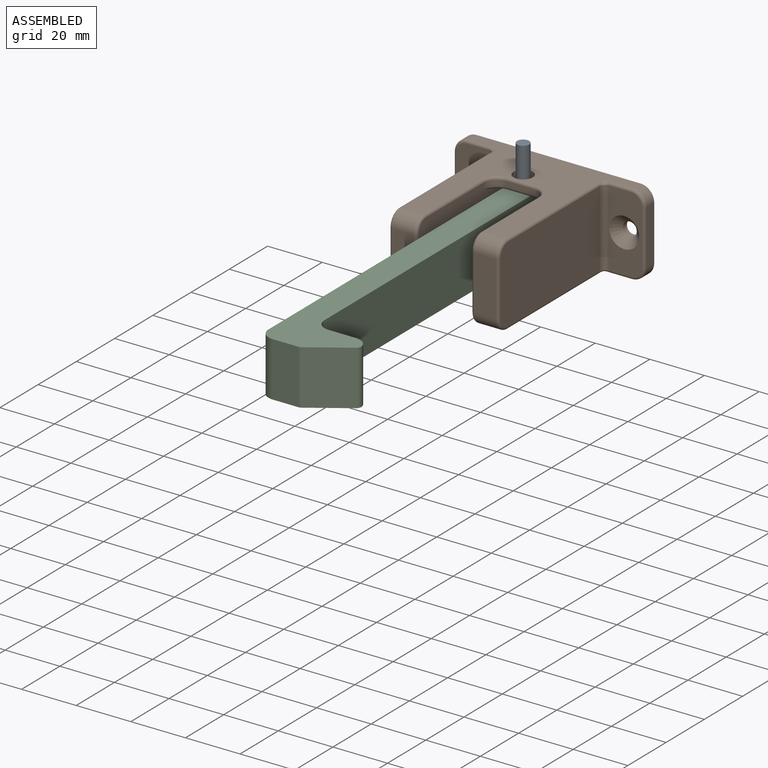
[diagram: assembled view]
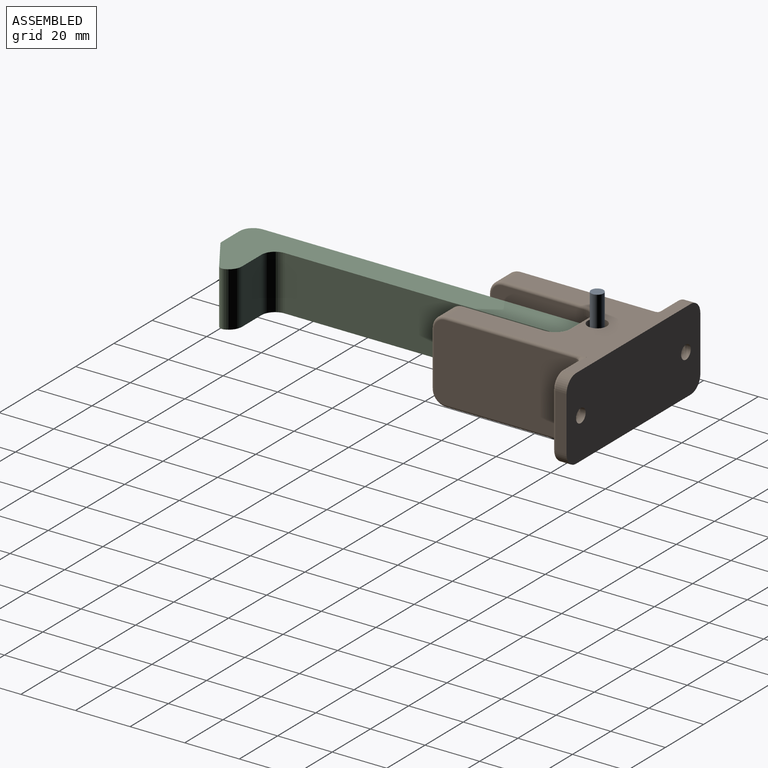
[diagram: assembled view, second angle]
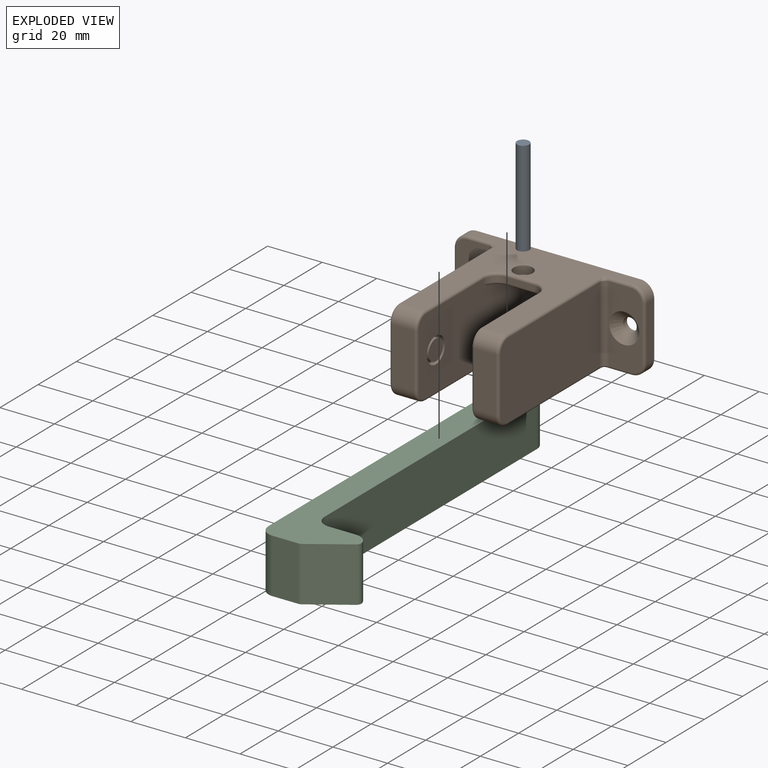
[diagram: exploded view]
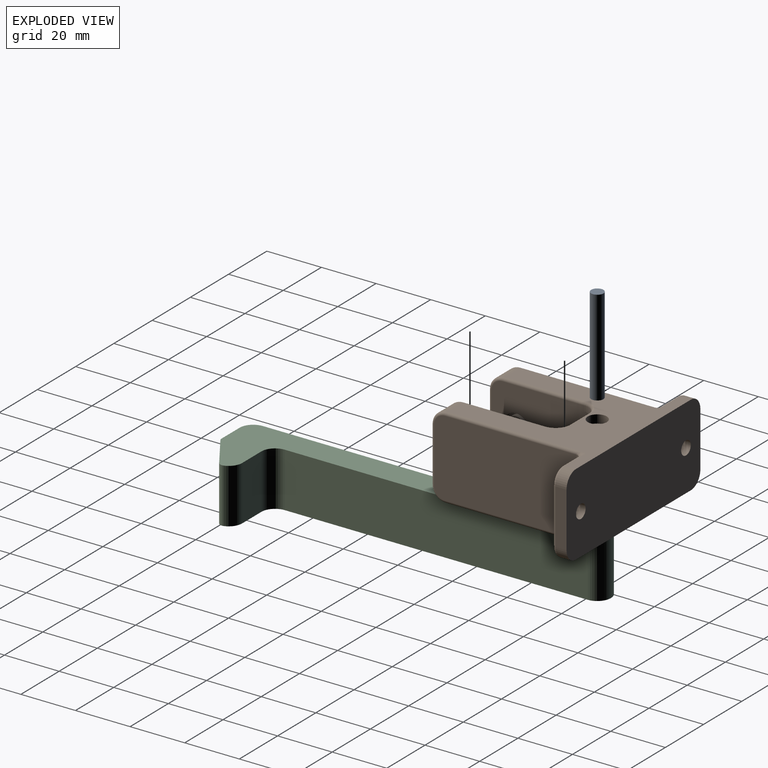
[diagram: exploded view, second angle]
ASSEMBLY  parts=3 mates=2
PART A: 3 faces, bbox 4.5x4.5x35 mm
  f0: cylinder r=2.25mm len=35mm, axis (0,0,-1), area 494.8mm2, adj f1,f2
  f1: plane 4.5x4.5mm, normal (0,0,1), area 15.9mm2, adj f0
  f2: plane 4.5x4.5mm, normal (0,0,-1), area 15.9mm2, adj f0
PART B: 97 faces, bbox 70.8x60.4x30.8 mm
  f0: cylinder r=2.25mm len=4.5mm, axis (0,0,1), area 14.1mm2, adj f23,f48
  f1: cylinder r=2.25mm len=4.5mm, axis (0,0,1), area 28.3mm2, adj f24,f46
  f2: cylinder r=5mm len=5mm, axis (0,0,-1), area 15.7mm2, adj f3,f8,f54,f85
  f3: plane 10x2mm, normal (0,-1,0), area 20mm2, adj f2,f4,f56,f86
  f4: cylinder r=5mm len=5mm, axis (0,0,-1), area 15.7mm2, adj f3,f12,f58,f87
  f5: plane 28x12mm, normal (0,-1,0), area 234.1mm2, adj f39,f66,f68,f70,f72,f74,f95
  f6: plane 52x28mm, normal (-1,0,0), area 1449.1mm2, adj f65,f67,f69,f71,f73,f95
  f7: plane 20x8mm, normal (0,-1,0), area 160mm2, adj f21,f22,f49,f69
  f8: plane 54x28mm, normal (1,0,0), area 1296.8mm2, adj f2,f9,f23,f24,f25,f27,f49,f50
  f9: cylinder r=5mm len=5mm, axis (0,0,-1), area 23.6mm2, adj f8,f10,f55,f88
  f10: plane 10x3mm, normal (0,-1,0), area 30mm2, adj f9,f11,f57,f89
  f11: cylinder r=5mm len=5mm, axis (0,0,-1), area 23.6mm2, adj f10,f12,f59,f90
  f12: plane 54x28mm, normal (-1,0,0), area 1367.6mm2, adj f4,f11,f23,f24,f25,f60,f61,f62
  f13: plane 20x8mm, normal (0,-1,0), area 160mm2, adj f30,f31,f64,f78
  f14: plane 52x28mm, normal (1,0,0), area 1449.1mm2, adj f75,f76,f78,f80,f82,f92
  f15: plane 28x12mm, normal (0,-1,0), area 234.1mm2, adj f38,f77,f79,f81,f83,f84,f92
  f16: plane 20x4mm, normal (1,0,0), area 80mm2, adj f17,f32,f34,f81
  f17: plane 70x30mm, normal (0,1,0), area 2039.3mm2, adj f16,f18,f19,f20,f32,f33,f34,f35
  f18: plane 20x4mm, normal (-1,0,0), area 80mm2, adj f17,f33,f35,f70
  f19: plane 60x55mm, normal (0,0,1), area 1363mm2, adj f17,f22,f31,f34,f35,f47,f52,f54
  f20: plane 60x55mm, normal (0,0,-1), area 1359mm2, adj f17,f21,f30,f32,f33,f40,f41,f42
  f21: cylinder r=5mm len=8mm, axis (1,0,0), area 62.8mm2, adj f7,f20,f51,f67
  f22: cylinder r=5mm len=8mm, axis (-1,0,0), area 62.8mm2, adj f7,f19,f50,f71
  f23: plane 20x16.68mm, normal (0,0,-1), area 272mm2, adj f0,f8,f12,f25,f85,f86,f87
  f24: plane 20x16.68mm, normal (0,0,1), area 272mm2, adj f1,f8,f12,f25,f88,f89,f90
  f25: plane 21x20mm, normal (0,-1,0), area 420mm2, adj f8,f12,f23,f24
  f26: cylinder r=3.75mm len=7.5mm, axis (1,0,0), area 47.1mm2, adj f28,f29
  f27: cylinder r=4.75mm len=9.5mm, axis (1,0,0), area 59.7mm2, adj f8,f28
  f28: plane 9.5x9.5mm, normal (1,0,0), area 26.7mm2, adj f26,f27
  f29: plane 7.5x7.5mm, normal (1,0,0), area 44.2mm2, adj f26
  f30: cylinder r=5mm len=8mm, axis (1,0,0), area 62.8mm2, adj f13,f20,f63,f76
  f31: cylinder r=5mm len=8mm, axis (-1,0,0), area 62.8mm2, adj f13,f19,f62,f80
  f32: cylinder r=5mm len=5mm, axis (0,1,0), area 31.4mm2, adj f16,f17,f20,f79
  f33: cylinder r=5mm len=5mm, axis (0,-1,0), area 31.4mm2, adj f17,f18,f20,f68
  f34: cylinder r=5mm len=5mm, axis (0,-1,0), area 31.4mm2, adj f16,f17,f19,f83
  f35: cylinder r=5mm len=5mm, axis (0,1,0), area 31.4mm2, adj f17,f18,f19,f72
  f36: cylinder r=2.5mm len=5mm, axis (0,1,0), area 31.4mm2, adj f17,f38
  f37: cylinder r=2.5mm len=5mm, axis (0,1,0), area 31.4mm2, adj f17,f39
  f38: cone r=5.5mm half-angle=45deg, axis (0,-1,0), area 106.6mm2, adj f15,f36
  f39: cone r=5.5mm half-angle=45deg, axis (0,-1,0), area 106.6mm2, adj f5,f37
  f40: plane 3.5x3mm, normal (-0.87,0.5,0), area 12.1mm2, adj f20,f41,f45,f46
  f41: plane 4.04x3mm, normal (0,1,0), area 12.1mm2, adj f20,f40,f42,f46
  f42: plane 3.5x3mm, normal (0.87,0.5,0), area 12.1mm2, adj f20,f41,f43,f46
  f43: plane 3.5x3mm, normal (0.87,-0.5,0), area 12.1mm2, adj f20,f42,f44,f46
  f44: plane 4.04x3mm, normal (0,-1,0), area 12.1mm2, adj f20,f43,f45,f46
  f45: plane 3.5x3mm, normal (-0.87,-0.5,0), area 12.1mm2, adj f20,f40,f44,f46
  f46: plane 8.08x7mm, normal (0,0,-1), area 26.5mm2, adj f1,f40,f41,f42,f43,f44,f45
  f47: cylinder r=3.5mm len=7mm, axis (0,0,1), area 66mm2, adj f19,f48
  f48: plane 7x7mm, normal (0,0,1), area 22.6mm2, adj f0,f47
  f49: cylinder r=1mm len=20mm, axis (0,0,-1), area 31.4mm2, adj f7,f8,f50,f51
  f50: torus R=4mm, axis (-1,0,0), area 11.4mm2, adj f8,f22,f49,f52
  f51: torus R=4mm, axis (-1,0,0), area 11.4mm2, adj f8,f21,f49,f53
  f52: cylinder r=1mm len=30mm, axis (0,-1,0), area 47.1mm2, adj f8,f19,f50,f54
  f53: cylinder r=1mm len=30mm, axis (0,1,0), area 47.1mm2, adj f8,f20,f51,f55
  f54: torus R=6mm, axis (0,0,1), area 13.2mm2, adj f2,f19,f52,f56
  f55: torus R=6mm, axis (0,0,1), area 13.2mm2, adj f9,f20,f53,f57
  f56: cylinder r=1mm len=10mm, axis (-1,0,0), area 15.7mm2, adj f3,f19,f54,f58
  f57: cylinder r=1mm len=10mm, axis (1,0,0), area 15.7mm2, adj f10,f20,f55,f59
  f58: torus R=6mm, axis (0,0,1), area 13.2mm2, adj f4,f19,f56,f60
  f59: torus R=6mm, axis (0,0,1), area 13.2mm2, adj f11,f20,f57,f61
  f60: cylinder r=1mm len=30mm, axis (0,1,0), area 47.1mm2, adj f12,f19,f58,f62
  f61: cylinder r=1mm len=30mm, axis (0,-1,0), area 47.1mm2, adj f12,f20,f59,f63
  f62: torus R=4mm, axis (1,0,0), area 11.4mm2, adj f12,f31,f60,f64
  f63: torus R=4mm, axis (1,0,0), area 11.4mm2, adj f12,f30,f61,f64
  f64: cylinder r=1mm len=20mm, axis (0,0,-1), area 31.4mm2, adj f12,f13,f62,f63
  f65: cylinder r=1mm len=51mm, axis (0,-1,0), area 77.1mm2, adj f6,f20,f67,f94
  f66: cylinder r=1mm len=11mm, axis (1,0,0), area 14.3mm2, adj f5,f20,f68,f94
  f67: torus R=4mm, axis (-1,0,0), area 11.4mm2, adj f6,f21,f65,f69
  f68: torus R=4mm, axis (0,1,0), area 11.4mm2, adj f5,f33,f66,f70
  f69: cylinder r=1mm len=20mm, axis (0,0,1), area 31.4mm2, adj f6,f7,f67,f71
  f70: cylinder r=1mm len=20mm, axis (0,0,-1), area 31.4mm2, adj f5,f18,f68,f72
  f71: torus R=4mm, axis (-1,0,0), area 11.4mm2, adj f6,f22,f69,f73
  f72: torus R=4mm, axis (0,1,0), area 11.4mm2, adj f5,f35,f70,f74
  f73: cylinder r=1mm len=51mm, axis (0,1,0), area 77.1mm2, adj f6,f19,f71,f96
  f74: cylinder r=1mm len=11mm, axis (-1,0,0), area 14.3mm2, adj f5,f19,f72,f96
  f75: cylinder r=1mm len=51mm, axis (0,1,0), area 77.1mm2, adj f14,f20,f76,f91
  f76: torus R=4mm, axis (-1,0,0), area 11.4mm2, adj f14,f30,f75,f78
  f77: cylinder r=1mm len=11mm, axis (1,0,0), area 14.3mm2, adj f15,f20,f79,f91
  f78: cylinder r=1mm len=20mm, axis (0,0,-1), area 31.4mm2, adj f13,f14,f76,f80
  f79: torus R=4mm, axis (0,1,0), area 11.4mm2, adj f15,f32,f77,f81
  f80: torus R=4mm, axis (-1,0,0), area 11.4mm2, adj f14,f31,f78,f82
  f81: cylinder r=1mm len=20mm, axis (0,0,1), area 31.4mm2, adj f15,f16,f79,f83
  f82: cylinder r=1mm len=51mm, axis (0,-1,0), area 77.1mm2, adj f14,f19,f80,f93
  f83: torus R=4mm, axis (0,1,0), area 11.4mm2, adj f15,f34,f81,f84
  f84: cylinder r=1mm len=11mm, axis (-1,0,0), area 14.3mm2, adj f15,f19,f83,f93
  f85: torus R=6mm, axis (0,0,-1), area 10.5mm2, adj f2,f8,f23,f86
  f86: cylinder r=1mm len=10mm, axis (1,0,0), area 15.7mm2, adj f3,f23,f85,f87
  f87: torus R=6mm, axis (0,0,-1), area 10.5mm2, adj f4,f12,f23,f86
  f88: torus R=6mm, axis (0,0,-1), area 10.5mm2, adj f8,f9,f24,f89
  f89: cylinder r=1mm len=10mm, axis (-1,0,0), area 15.7mm2, adj f10,f24,f88,f90
  f90: torus R=6mm, axis (0,0,-1), area 10.5mm2, adj f11,f12,f24,f89
  f91: bspline ~3x3mm, area 4.1mm2, adj f75,f77,f92
  f92: cylinder r=2mm len=28mm, axis (0,0,1), area 88mm2, adj f14,f15,f91,f93
  f93: bspline ~3x3mm, area 4.1mm2, adj f82,f84,f92
  f94: bspline ~3x3mm, area 4.1mm2, adj f65,f66,f95
  f95: cylinder r=2mm len=28mm, axis (0,0,-1), area 88mm2, adj f5,f6,f94,f96
  f96: bspline ~3x3mm, area 4.1mm2, adj f73,f74,f95
PART C: 18 faces, bbox 29.8x136x20 mm
  f0: cylinder r=5mm len=20mm, axis (0,0,-1), area 157.1mm2, adj f1,f11,f12,f13
  f1: plane 20x10mm, normal (0,1,0), area 200mm2, adj f0,f2,f12,f13
  f2: cylinder r=5mm len=20mm, axis (0,0,-1), area 124.4mm2, adj f1,f3,f12,f13
  f3: cylinder r=2mm len=20mm, axis (0,0,-1), area 52.4mm2, adj f2,f4,f12,f13
  f4: plane 20x13.45mm, normal (-0.55,-0.83,0), area 323.2mm2, adj f3,f5,f12,f13
  f5: cylinder r=2mm len=20mm, axis (0,0,-1), area 23.5mm2, adj f4,f6,f12,f13
  f6: plane 20x9.39mm, normal (0,-1,0), area 187.9mm2, adj f5,f7,f12,f13
  f7: cylinder r=5mm len=20mm, axis (0,0,-1), area 157.1mm2, adj f6,f8,f12,f13
  f8: plane 126x20mm, normal (1,0,0), area 2449.1mm2, adj f7,f9,f12,f13,f15
  f9: cylinder r=5mm len=20mm, axis (0,0,-1), area 314.2mm2, adj f8,f11,f12,f13
  f10: cylinder r=2mm len=20mm, axis (0,0,-1), area 251.3mm2, adj f12,f13
  f11: plane 111x20mm, normal (-1,0,0), area 2220mm2, adj f0,f9,f12,f13
  f12: plane 136x29.84mm, normal (0,0,1), area 1556mm2, adj f0,f1,f2,f3,f4,f5,f6,f7
  f13: plane 136x29.84mm, normal (0,0,-1), area 1556mm2, adj f0,f1,f2,f3,f4,f5,f6,f7
  f14: cylinder r=3.75mm len=7.5mm, axis (1,0,0), area 47.1mm2, adj f16,f17
  f15: cylinder r=4.75mm len=9.5mm, axis (1,0,0), area 59.7mm2, adj f8,f16
  f16: plane 9.5x9.5mm, normal (1,0,0), area 26.7mm2, adj f14,f15
  f17: plane 7.5x7.5mm, normal (1,0,0), area 44.2mm2, adj f14
PLACE A rot(axis=(1,0,0),180deg) t=(43.73,178.94,14.99)mm
PLACE B t=(-16.53,-86.1,-25.56)mm
PLACE C rot(axis=(0,1,0),180deg) t=(-8.09,-72.1,-0.01)mm
MATE revolute C.f9 <-> A.f0  axis (0,0,-1) through (-13.09,43.9,-20.01)mm
MATE slider A.f0 <-> B.f0  axis (0,0,-1) through (-13.09,43.9,-20.01)mm
